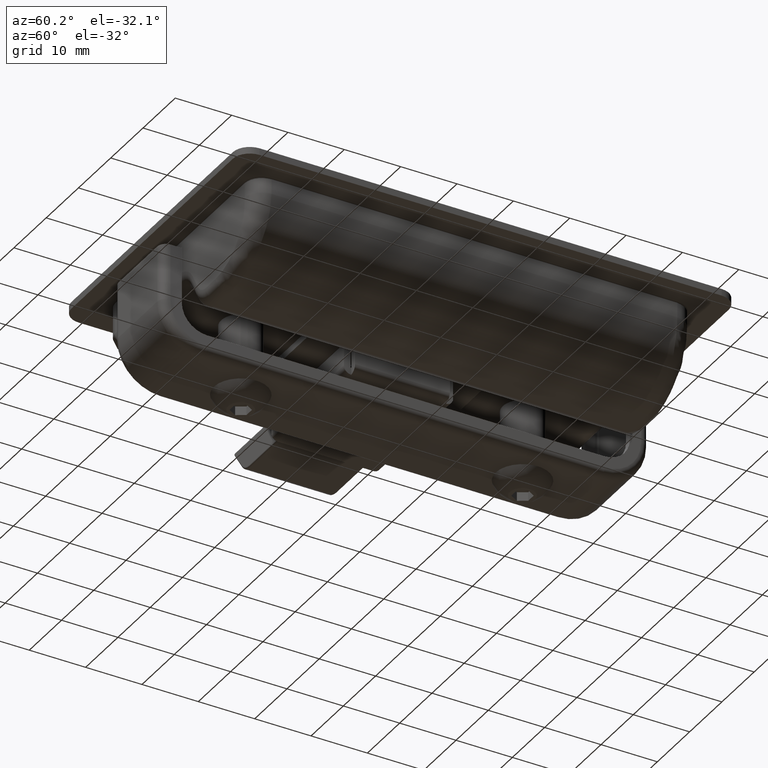
[diagram: clean part render]
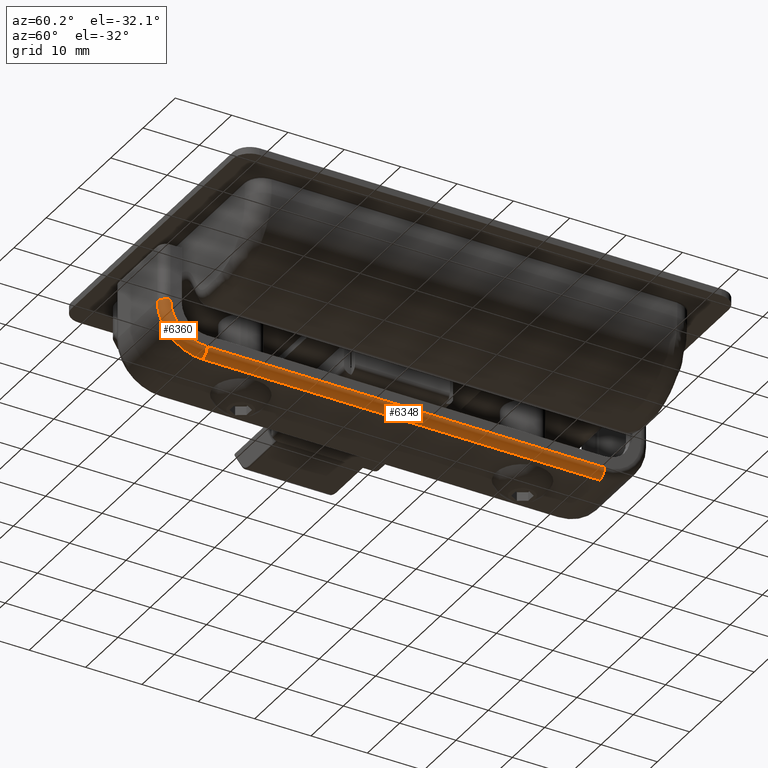
[diagram: same view with one multi-face feature highlighted, each face labeled with its STEP entity id]
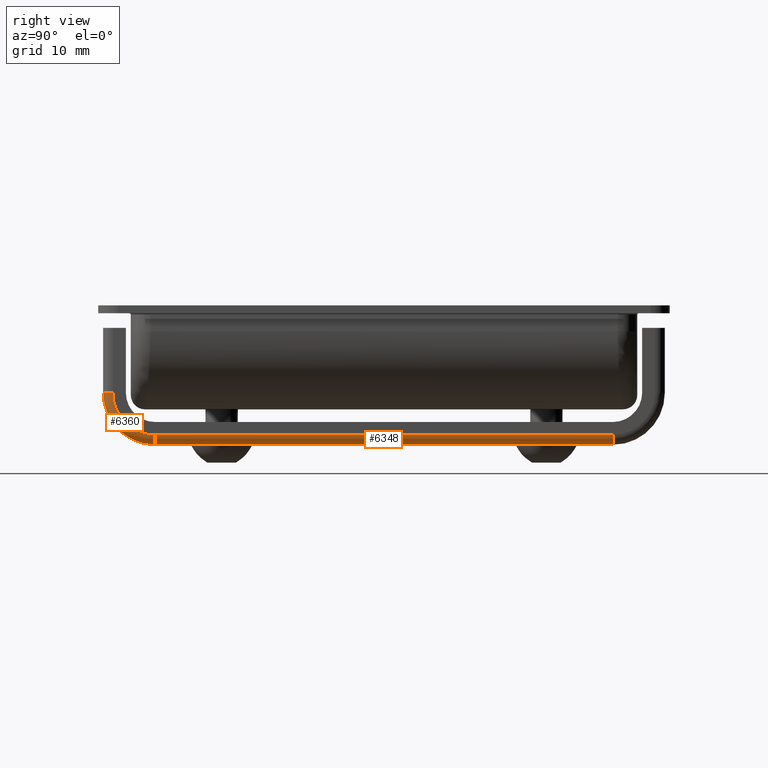
[diagram: same view with one multi-face feature highlighted, each face labeled with its STEP entity id]
A machine part, auxiliary view. The highlighted faces form ONE feature: a constant-radius fillet chain: 2 tangent blend faces with common blend radius 1.5 mm. The faces share edges in the B-rep.
A second angle (right view) of the same feature is appended — it is thin or edge-on in the first view.
Their STEP definitions:
[1] entity #6360 (Torus):
#151=TOROIDAL_SURFACE('',#7042,6.5,1.5);
#1879=FACE_OUTER_BOUND('',#2320,.T.);
#2320=EDGE_LOOP('',(#5686,#5687,#5688,#5689));
#2657=CIRCLE('',#7025,1.5);
#2662=CIRCLE('',#7041,6.5);
#2663=CIRCLE('',#7043,1.5);
#2664=CIRCLE('',#7044,8.);
#3155=VERTEX_POINT('',#12420);
#3156=VERTEX_POINT('',#12424);
#3167=VERTEX_POINT('',#12468);
#3168=VERTEX_POINT('',#12472);
#3997=EDGE_CURVE('',#3156,#3155,#2657,.T.);
#4020=EDGE_CURVE('',#3167,#3155,#2662,.T.);
#4021=EDGE_CURVE('',#3168,#3167,#2663,.T.);
#4022=EDGE_CURVE('',#3168,#3156,#2664,.T.);
#5686=ORIENTED_EDGE('',*,*,#4020,.F.);
#5687=ORIENTED_EDGE('',*,*,#4021,.F.);
#5688=ORIENTED_EDGE('',*,*,#4022,.T.);
#5689=ORIENTED_EDGE('',*,*,#3997,.T.);
#6360=ADVANCED_FACE('',(#1879),#151,.T.);
#7025=AXIS2_PLACEMENT_3D('',#12425,#8823,#8824);
#7041=AXIS2_PLACEMENT_3D('',#12470,#8873,#8874);
#7042=AXIS2_PLACEMENT_3D('',#12471,#8875,#8876);
#7043=AXIS2_PLACEMENT_3D('',#12473,#8877,#8878);
#7044=AXIS2_PLACEMENT_3D('',#12474,#8879,#8880);
#8823=DIRECTION('center_axis',(-1.,0.,0.));
#8824=DIRECTION('ref_axis',(0.,0.,1.));
#8873=DIRECTION('center_axis',(0.,0.,-1.));
#8874=DIRECTION('ref_axis',(-1.,2.40192481289096E-15,0.));
#8875=DIRECTION('center_axis',(0.,0.,-1.));
#8876=DIRECTION('ref_axis',(-1.,0.,0.));
#8877=DIRECTION('center_axis',(0.,-1.,0.));
#8878=DIRECTION('ref_axis',(0.,0.,1.));
#8879=DIRECTION('center_axis',(0.,0.,-1.));
#8880=DIRECTION('ref_axis',(-1.,1.95156391047391E-15,0.));
#12420=CARTESIAN_POINT('',(-35.25,16.5,-7.5));
#12424=CARTESIAN_POINT('',(-35.25,18.,-6.));
#12425=CARTESIAN_POINT('Origin',(-35.25,16.5,-6.));
#12468=CARTESIAN_POINT('',(-41.75,10.,-7.5));
#12470=CARTESIAN_POINT('Origin',(-35.25,10.,-7.5));
#12471=CARTESIAN_POINT('Origin',(-35.25,10.,-6.));
#12472=CARTESIAN_POINT('',(-43.25,10.,-6.));
#12473=CARTESIAN_POINT('Origin',(-41.75,10.,-6.));
#12474=CARTESIAN_POINT('Origin',(-35.25,10.,-6.));
[2] entity #6348 (Cylinder):
#677=LINE('',#12422,#1211);
#678=LINE('',#12426,#1212);
#1211=VECTOR('',#8820,70.5);
#1212=VECTOR('',#8825,70.5);
#1867=FACE_OUTER_BOUND('',#2304,.T.);
#2304=EDGE_LOOP('',(#5634,#5635,#5636,#5637));
#2643=CIRCLE('',#6999,1.5);
#2657=CIRCLE('',#7025,1.5);
#3143=VERTEX_POINT('',#12372);
#3144=VERTEX_POINT('',#12376);
#3155=VERTEX_POINT('',#12420);
#3156=VERTEX_POINT('',#12424);
#3973=EDGE_CURVE('',#3144,#3143,#2643,.T.);
#3996=EDGE_CURVE('',#3155,#3143,#677,.T.);
#3997=EDGE_CURVE('',#3156,#3155,#2657,.T.);
#3998=EDGE_CURVE('',#3156,#3144,#678,.T.);
#5634=ORIENTED_EDGE('',*,*,#3996,.F.);
#5635=ORIENTED_EDGE('',*,*,#3997,.F.);
#5636=ORIENTED_EDGE('',*,*,#3998,.T.);
#5637=ORIENTED_EDGE('',*,*,#3973,.T.);
#5985=CYLINDRICAL_SURFACE('',#7024,1.5);
#6348=ADVANCED_FACE('',(#1867),#5985,.T.);
#6999=AXIS2_PLACEMENT_3D('',#12377,#8761,#8762);
#7024=AXIS2_PLACEMENT_3D('',#12423,#8821,#8822);
#7025=AXIS2_PLACEMENT_3D('',#12425,#8823,#8824);
#8761=DIRECTION('center_axis',(-1.,-1.96848054011553E-16,0.));
#8762=DIRECTION('ref_axis',(0.,0.,1.));
#8820=DIRECTION('',(1.,1.96848054011553E-16,0.));
#8821=DIRECTION('center_axis',(1.,1.96848054011553E-16,0.));
#8822=DIRECTION('ref_axis',(-1.96848054011553E-16,1.,0.));
#8823=DIRECTION('center_axis',(-1.,0.,0.));
#8824=DIRECTION('ref_axis',(0.,0.,1.));
#8825=DIRECTION('',(1.,1.96848054011553E-16,0.));
#12372=CARTESIAN_POINT('',(35.25,16.5,-7.5));
#12376=CARTESIAN_POINT('',(35.25,18.,-6.));
#12377=CARTESIAN_POINT('Origin',(35.25,16.5,-6.));
#12420=CARTESIAN_POINT('',(-35.25,16.5,-7.5));
#12422=CARTESIAN_POINT('',(-35.25,16.5,-7.5));
#12423=CARTESIAN_POINT('Origin',(-35.25,16.5,-6.));
#12424=CARTESIAN_POINT('',(-35.25,18.,-6.));
#12425=CARTESIAN_POINT('Origin',(-35.25,16.5,-6.));
#12426=CARTESIAN_POINT('',(-35.25,18.,-6.));